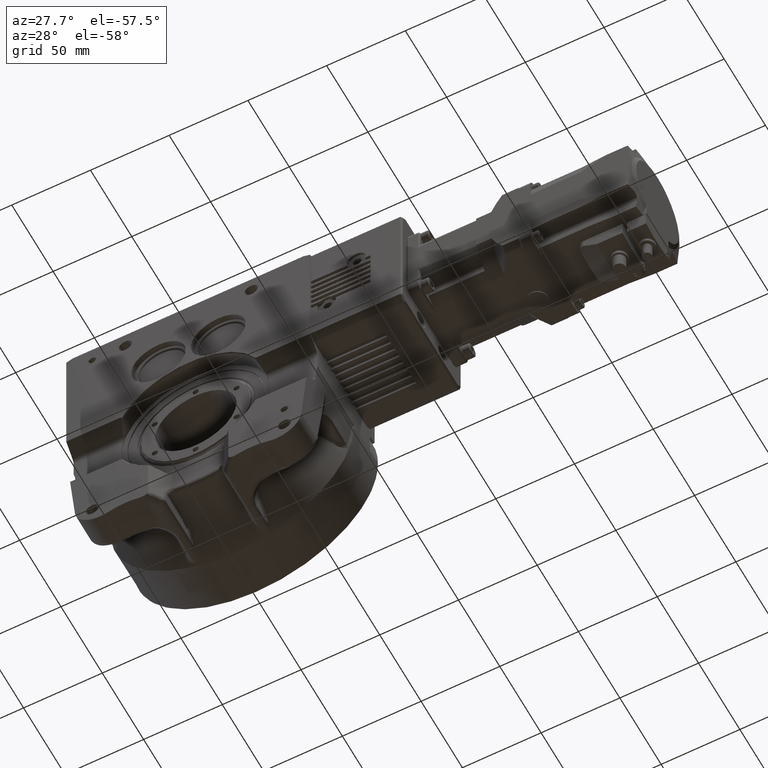
[diagram: clean part render]
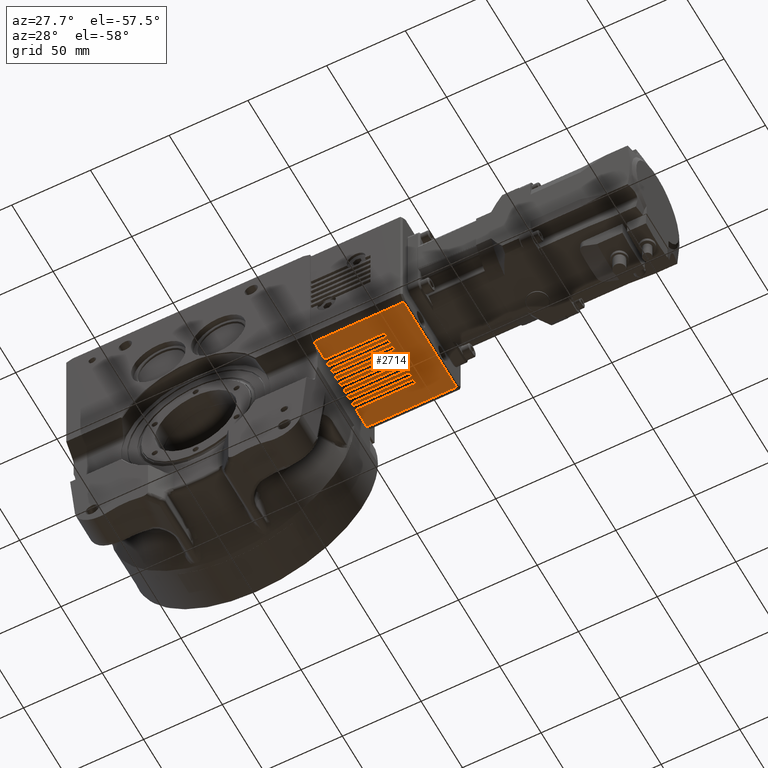
[diagram: same view with one face highlighted and labeled with its STEP entity id]
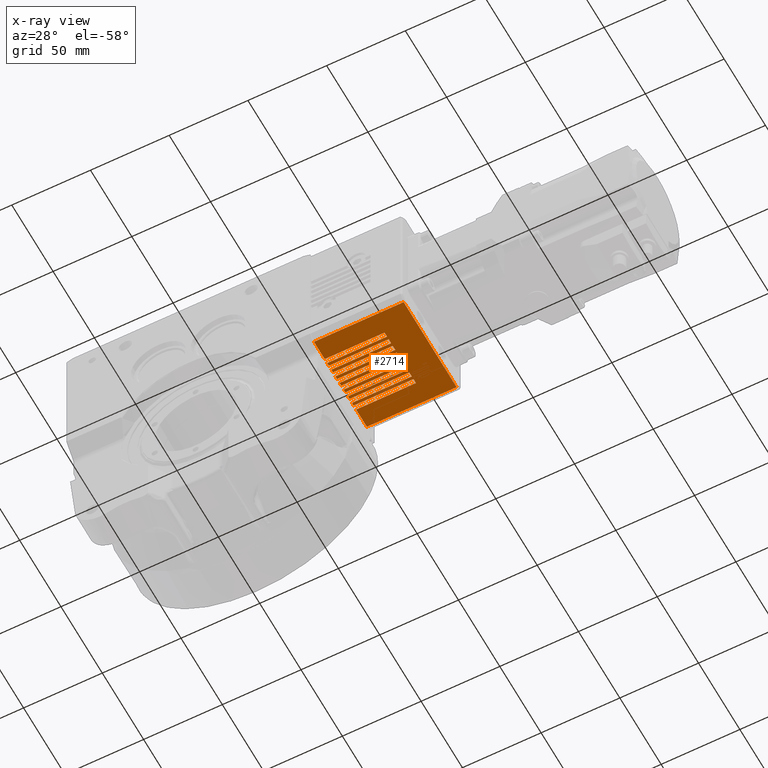
[diagram: x-ray of the same camera — body ghosted, the highlighted face saturated]
A machine part, auxiliary view. The second image highlights one B-rep face of the part: STEP entity #2714.
The next image is the same camera in x-ray: the body ghosted, the highlighted face saturated — about 0% of this face is hidden behind the body in this view.
In plain terms, the highlighted planar face has unit normal (0, 0, -1).
Its self-contained STEP definition (entity closure, byte-faithful):
#90 = DIRECTION ( 'NONE',  ( 1.000000000000000000, -2.782884840501479875E-17, 0.000000000000000000 ) ) ;
#307 = VERTEX_POINT ( 'NONE', #60801 ) ;
#331 = CARTESIAN_POINT ( 'NONE',  ( -1.001838542580531843E-15, -36.00000000000000000, -43.50000000000000000 ) ) ;
#1050 = VERTEX_POINT ( 'NONE', #28929 ) ;
#1334 = CARTESIAN_POINT ( 'NONE',  ( -154.2624153836570144, -1.000000000000000000, -43.50000000000000000 ) ) ;
#1397 = EDGE_CURVE ( 'NONE', #15927, #34918, #70241, .T. ) ;
#1958 = CARTESIAN_POINT ( 'NONE',  ( -1.001838542580531843E-15, -36.00000000000000000, -43.50000000000000000 ) ) ;
#2038 = VERTEX_POINT ( 'NONE', #23937 ) ;
#2714 = ADVANCED_FACE ( 'NONE', ( #62390 ), #37705, .T. ) ;
#3105 = DIRECTION ( 'NONE',  ( 0.000000000000000000, 1.000000000000000000, 0.000000000000000000 ) ) ;
#3333 = VERTEX_POINT ( 'NONE', #51579 ) ;
#3510 = VECTOR ( 'NONE', #64135, 1000.000000000000000 ) ;
#4363 = CARTESIAN_POINT ( 'NONE',  ( 38.00000000000000000, -4.000000000000000000, -43.50000000000000000 ) ) ;
#4749 = EDGE_CURVE ( 'NONE', #47466, #68506, #42339, .T. ) ;
#4782 = ORIENTED_EDGE ( 'NONE', *, *, #42998, .T. ) ;
#4945 = LINE ( 'NONE', #48483, #62873 ) ;
#5036 = VERTEX_POINT ( 'NONE', #52572 ) ;
#5043 = VERTEX_POINT ( 'NONE', #71863 ) ;
#5356 = ORIENTED_EDGE ( 'NONE', *, *, #72445, .T. ) ;
#5422 = VECTOR ( 'NONE', #30324, 1000.000000000000000 ) ;
#5534 = CARTESIAN_POINT ( 'NONE',  ( 38.00000000000000000, -9.000000000000000000, -43.50000000000000000 ) ) ;
#5771 = DIRECTION ( 'NONE',  ( -1.000000000000000000, 2.782884840501479875E-17, 0.000000000000000000 ) ) ;
#5887 = EDGE_CURVE ( 'NONE', #15698, #2038, #66327, .T. ) ;
#6012 = CARTESIAN_POINT ( 'NONE',  ( -2.782884840501480491E-17, -1.000000000000000000, -43.50000000000000000 ) ) ;
#6022 = LINE ( 'NONE', #56124, #55570 ) ;
#7044 = EDGE_CURVE ( 'NONE', #3333, #20768, #64631, .T. ) ;
#7217 = VERTEX_POINT ( 'NONE', #73208 ) ;
#7297 = VECTOR ( 'NONE', #28246, 1000.000000000000000 ) ;
#7767 = VECTOR ( 'NONE', #51444, 1000.000000000000000 ) ;
#7963 = EDGE_CURVE ( 'NONE', #37427, #64761, #77468, .T. ) ;
#8223 = CARTESIAN_POINT ( 'NONE',  ( -154.2624153836570144, 4.000000000000000000, -43.50000000000000000 ) ) ;
#8301 = DIRECTION ( 'NONE',  ( 1.000000000000000000, -2.782884840501479875E-17, 0.000000000000000000 ) ) ;
#8599 = ORIENTED_EDGE ( 'NONE', *, *, #75779, .T. ) ;
#9492 = CARTESIAN_POINT ( 'NONE',  ( -154.2624153836570144, -19.00000000000000000, -43.50000000000000000 ) ) ;
#9943 = LINE ( 'NONE', #34988, #26663 ) ;
#9998 = EDGE_CURVE ( 'NONE', #2038, #66585, #15232, .T. ) ;
#10114 = LINE ( 'NONE', #47929, #55194 ) ;
#10118 = ORIENTED_EDGE ( 'NONE', *, *, #44086, .T. ) ;
#11744 = VECTOR ( 'NONE', #38997, 1000.000000000000000 ) ;
#12012 = VECTOR ( 'NONE', #14257, 1000.000000000000000 ) ;
#12255 = CARTESIAN_POINT ( 'NONE',  ( -154.2624153836570144, -36.00000000000000000, -43.50000000000000000 ) ) ;
#12513 = CARTESIAN_POINT ( 'NONE',  ( 38.00000000000000000, 9.000000000000000000, -43.50000000000000000 ) ) ;
#12751 = CARTESIAN_POINT ( 'NONE',  ( -9.285310410370950507, 31.99609351155235260, -43.50000000000000000 ) ) ;
#12784 = LINE ( 'NONE', #63727, #32085 ) ;
#12840 = DIRECTION ( 'NONE',  ( -2.782884840501479875E-17, -1.000000000000000000, -6.162975822039160204E-33 ) ) ;
#13531 = VERTEX_POINT ( 'NONE', #63021 ) ;
#13828 = DIRECTION ( 'NONE',  ( -2.782884840501479875E-17, -1.000000000000000000, -6.162975822039160204E-33 ) ) ;
#14257 = DIRECTION ( 'NONE',  ( 0.000000000000000000, 1.000000000000000000, 0.000000000000000000 ) ) ;
#14667 = CARTESIAN_POINT ( 'NONE',  ( 3.061173324551629896E-16, 11.00000000000000000, -43.50000000000000000 ) ) ;
#14832 = LINE ( 'NONE', #9492, #17211 ) ;
#15232 = LINE ( 'NONE', #26338, #7767 ) ;
#15698 = VERTEX_POINT ( 'NONE', #47946 ) ;
#15927 = VERTEX_POINT ( 'NONE', #44590 ) ;
#16006 = EDGE_CURVE ( 'NONE', #307, #79423, #6022, .T. ) ;
#17211 = VECTOR ( 'NONE', #8301, 1000.000000000000000 ) ;
#17343 = VERTEX_POINT ( 'NONE', #5534 ) ;
#17423 = DIRECTION ( 'NONE',  ( -1.000000000000000000, 2.782884840501479875E-17, 0.000000000000000000 ) ) ;
#17756 = CARTESIAN_POINT ( 'NONE',  ( 38.00000000000000000, 32.00000000000000000, -43.50000000000000000 ) ) ;
#17981 = DIRECTION ( 'NONE',  ( -1.000000000000000000, 0.000000000000000000, -1.715085198752989854E-49 ) ) ;
#18574 = VERTEX_POINT ( 'NONE', #50707 ) ;
#18644 = VERTEX_POINT ( 'NONE', #36226 ) ;
#18710 = EDGE_CURVE ( 'NONE', #307, #63535, #43632, .T. ) ;
#20761 = LINE ( 'NONE', #56986, #66350 ) ;
#20768 = VERTEX_POINT ( 'NONE', #56010 ) ;
#20831 = EDGE_CURVE ( 'NONE', #42022, #25356, #80274, .T. ) ;
#20838 = ORIENTED_EDGE ( 'NONE', *, *, #42082, .T. ) ;
#20969 = ORIENTED_EDGE ( 'NONE', *, *, #9998, .T. ) ;
#21177 = DIRECTION ( 'NONE',  ( 1.000000000000000000, -2.782884840501479875E-17, 0.000000000000000000 ) ) ;
#21678 = EDGE_CURVE ( 'NONE', #28901, #57121, #58144, .T. ) ;
#22003 = EDGE_CURVE ( 'NONE', #17343, #7217, #55621, .T. ) ;
#22034 = CARTESIAN_POINT ( 'NONE',  ( 38.00000000000000000, 32.00000000000000000, -43.50000000000000000 ) ) ;
#22102 = DIRECTION ( 'NONE',  ( -1.000000000000000000, 2.782884840501479875E-17, 0.000000000000000000 ) ) ;
#22116 = VERTEX_POINT ( 'NONE', #56427 ) ;
#22311 = CARTESIAN_POINT ( 'NONE',  ( 2.782884840501480491E-17, 1.000000000000000000, -43.50000000000000000 ) ) ;
#22474 = LINE ( 'NONE', #41383, #7297 ) ;
#22481 = EDGE_CURVE ( 'NONE', #28901, #73191, #49365, .T. ) ;
#22883 = VECTOR ( 'NONE', #38708, 1000.000000000000000 ) ;
#23297 = CARTESIAN_POINT ( 'NONE',  ( 38.00000000000000000, -16.00000000000000000, -43.50000000000000000 ) ) ;
#23412 = CARTESIAN_POINT ( 'NONE',  ( -154.2624153836570144, -4.000000000000000000, -43.50000000000000000 ) ) ;
#23675 = VECTOR ( 'NONE', #30036, 1000.000000000000000 ) ;
#23893 = LINE ( 'NONE', #30054, #50604 ) ;
#23937 = CARTESIAN_POINT ( 'NONE',  ( 57.00000000000000000, -31.99609351155230286, -43.50000000000000000 ) ) ;
#24128 = DIRECTION ( 'NONE',  ( -2.782884840501479875E-17, -1.000000000000000000, -6.162975822039160204E-33 ) ) ;
#24350 = EDGE_CURVE ( 'NONE', #5043, #42437, #14832, .T. ) ;
#24985 = EDGE_LOOP ( 'NONE', ( #67729, #69359, #36705, #20838, #37859, #5356, #79271, #54900, #52061, #31234, #64230, #69128, #34188, #81023, #62717, #78273, #76099, #55452, #31611, #69835, #69209, #37966, #76469, #35671, #79900, #36961, #10118, #79089, #45515, #35992, #36875, #20969, #48266, #80532, #4782, #8599 ) ) ;
#24988 = CARTESIAN_POINT ( 'NONE',  ( 38.00000000000000000, 16.00000000000000000, -43.50000000000000000 ) ) ;
#25184 = CARTESIAN_POINT ( 'NONE',  ( 38.00000000000000000, 32.00000000000000000, -43.50000000000000000 ) ) ;
#25356 = VERTEX_POINT ( 'NONE', #73175 ) ;
#25619 = EDGE_CURVE ( 'NONE', #18574, #1050, #27071, .T. ) ;
#26338 = CARTESIAN_POINT ( 'NONE',  ( -9.285310410370950507, -31.99609351155235260, -43.50000000000000000 ) ) ;
#26663 = VECTOR ( 'NONE', #78987, 1000.000000000000000 ) ;
#27071 = LINE ( 'NONE', #8223, #71214 ) ;
#27284 = CARTESIAN_POINT ( 'NONE',  ( -154.2624153836570144, 1.000000000000000000, -43.50000000000000000 ) ) ;
#27285 = VERTEX_POINT ( 'NONE', #23297 ) ;
#27519 = DIRECTION ( 'NONE',  ( 0.000000000000000000, 1.000000000000000000, 0.000000000000000000 ) ) ;
#27952 = LINE ( 'NONE', #71534, #3510 ) ;
#28103 = CARTESIAN_POINT ( 'NONE',  ( -1.113153936200592197E-16, -4.000000000000000000, -43.50000000000000000 ) ) ;
#28218 = LINE ( 'NONE', #22034, #12012 ) ;
#28246 = DIRECTION ( 'NONE',  ( 0.000000000000000000, 1.000000000000000000, 0.000000000000000000 ) ) ;
#28357 = EDGE_CURVE ( 'NONE', #48240, #63518, #75894, .T. ) ;
#28901 = VERTEX_POINT ( 'NONE', #22311 ) ;
#28929 = CARTESIAN_POINT ( 'NONE',  ( 1.113153936200592197E-16, 4.000000000000000000, -43.50000000000000000 ) ) ;
#30036 = DIRECTION ( 'NONE',  ( -2.782884840501479875E-17, -1.000000000000000000, -6.162975822039160204E-33 ) ) ;
#30054 = CARTESIAN_POINT ( 'NONE',  ( -154.2624153836570144, -14.00000000000000000, -43.50000000000000000 ) ) ;
#30324 = DIRECTION ( 'NONE',  ( -2.782884840501479875E-17, -1.000000000000000000, -6.162975822039160204E-33 ) ) ;
#30423 = EDGE_CURVE ( 'NONE', #48240, #15927, #23893, .T. ) ;
#30519 = DIRECTION ( 'NONE',  ( 0.000000000000000000, 1.000000000000000000, 0.000000000000000000 ) ) ;
#31234 = ORIENTED_EDGE ( 'NONE', *, *, #4749, .T. ) ;
#31244 = EDGE_CURVE ( 'NONE', #64761, #79423, #79118, .T. ) ;
#31322 = CARTESIAN_POINT ( 'NONE',  ( -154.2624153836570144, -9.000000000000000000, -43.50000000000000000 ) ) ;
#31432 = DIRECTION ( 'NONE',  ( -2.782884840501479875E-17, -1.000000000000000000, -6.162975822039160204E-33 ) ) ;
#31611 = ORIENTED_EDGE ( 'NONE', *, *, #66519, .T. ) ;
#31822 = EDGE_CURVE ( 'NONE', #38197, #25356, #27952, .T. ) ;
#32085 = VECTOR ( 'NONE', #27519, 1000.000000000000000 ) ;
#32437 = LINE ( 'NONE', #12751, #36037 ) ;
#32929 = EDGE_CURVE ( 'NONE', #3333, #1050, #65784, .T. ) ;
#34118 = DIRECTION ( 'NONE',  ( -2.782884840501479875E-17, -1.000000000000000000, -6.162975822039160204E-33 ) ) ;
#34188 = ORIENTED_EDGE ( 'NONE', *, *, #22481, .F. ) ;
#34918 = VERTEX_POINT ( 'NONE', #66167 ) ;
#34988 = CARTESIAN_POINT ( 'NONE',  ( 38.00000000000000000, 32.00000000000000000, -43.50000000000000000 ) ) ;
#35180 = CARTESIAN_POINT ( 'NONE',  ( -3.896038776702074414E-16, -14.00000000000000000, -43.50000000000000000 ) ) ;
#35250 = CARTESIAN_POINT ( 'NONE',  ( 5.287481196952809852E-16, 19.00000000000000000, -43.50000000000000000 ) ) ;
#35671 = ORIENTED_EDGE ( 'NONE', *, *, #31244, .T. ) ;
#35673 = LINE ( 'NONE', #61549, #5422 ) ;
#35717 = VECTOR ( 'NONE', #41345, 1000.000000000000000 ) ;
#35992 = ORIENTED_EDGE ( 'NONE', *, *, #76174, .T. ) ;
#36037 = VECTOR ( 'NONE', #51367, 1000.000000000000000 ) ;
#36043 = VECTOR ( 'NONE', #45711, 1000.000000000000000 ) ;
#36226 = CARTESIAN_POINT ( 'NONE',  ( 38.00000000000000000, 19.00000000000000000, -43.50000000000000000 ) ) ;
#36518 = VERTEX_POINT ( 'NONE', #79225 ) ;
#36705 = ORIENTED_EDGE ( 'NONE', *, *, #1397, .T. ) ;
#36863 = EDGE_CURVE ( 'NONE', #42022, #37427, #20761, .T. ) ;
#36875 = ORIENTED_EDGE ( 'NONE', *, *, #5887, .T. ) ;
#36961 = ORIENTED_EDGE ( 'NONE', *, *, #18710, .T. ) ;
#37427 = VERTEX_POINT ( 'NONE', #38266 ) ;
#37705 = PLANE ( 'NONE',  #70628 ) ;
#37859 = ORIENTED_EDGE ( 'NONE', *, *, #62640, .F. ) ;
#37966 = ORIENTED_EDGE ( 'NONE', *, *, #36863, .T. ) ;
#38059 = VECTOR ( 'NONE', #80292, 1000.000000000000000 ) ;
#38197 = VERTEX_POINT ( 'NONE', #12513 ) ;
#38266 = CARTESIAN_POINT ( 'NONE',  ( 38.00000000000000000, 11.00000000000000000, -43.50000000000000000 ) ) ;
#38708 = DIRECTION ( 'NONE',  ( -1.000000000000000000, 2.782884840501479875E-17, 0.000000000000000000 ) ) ;
#38997 = DIRECTION ( 'NONE',  ( 0.000000000000000000, 1.000000000000000000, 0.000000000000000000 ) ) ;
#39440 = VECTOR ( 'NONE', #3105, 1000.000000000000000 ) ;
#39493 = CARTESIAN_POINT ( 'NONE',  ( -1.001838542580531843E-15, -36.00000000000000000, -43.50000000000000000 ) ) ;
#39948 = EDGE_CURVE ( 'NONE', #13531, #61303, #55398, .T. ) ;
#40525 = CARTESIAN_POINT ( 'NONE',  ( -154.2624153836570144, -6.000000000000000000, -43.50000000000000000 ) ) ;
#41345 = DIRECTION ( 'NONE',  ( -2.782884840501479875E-17, -1.000000000000000000, -6.162975822039160204E-33 ) ) ;
#41383 = CARTESIAN_POINT ( 'NONE',  ( 38.00000000000000000, 32.00000000000000000, -43.50000000000000000 ) ) ;
#42022 = VERTEX_POINT ( 'NONE', #14667 ) ;
#42082 = EDGE_CURVE ( 'NONE', #34918, #53480, #10114, .T. ) ;
#42151 = DIRECTION ( 'NONE',  ( -1.000000000000000000, 2.782884840501479875E-17, 0.000000000000000000 ) ) ;
#42264 = CARTESIAN_POINT ( 'NONE',  ( -1.001838542580531843E-15, -36.00000000000000000, -43.50000000000000000 ) ) ;
#42339 = LINE ( 'NONE', #23412, #47431 ) ;
#42437 = VERTEX_POINT ( 'NONE', #70059 ) ;
#42998 = EDGE_CURVE ( 'NONE', #42437, #27285, #28218, .T. ) ;
#43063 = LINE ( 'NONE', #42264, #55247 ) ;
#43438 = CARTESIAN_POINT ( 'NONE',  ( 38.00000000000000000, 14.00000000000000000, -43.50000000000000000 ) ) ;
#43632 = LINE ( 'NONE', #81042, #73043 ) ;
#44077 = DIRECTION ( 'NONE',  ( 1.000000000000000000, -2.782884840501479875E-17, 0.000000000000000000 ) ) ;
#44086 = EDGE_CURVE ( 'NONE', #63535, #18644, #9943, .T. ) ;
#44590 = CARTESIAN_POINT ( 'NONE',  ( 38.00000000000000000, -14.00000000000000000, -43.50000000000000000 ) ) ;
#45051 = EDGE_CURVE ( 'NONE', #57121, #18574, #12784, .T. ) ;
#45515 = ORIENTED_EDGE ( 'NONE', *, *, #39948, .F. ) ;
#45561 = EDGE_CURVE ( 'NONE', #68506, #22116, #22474, .T. ) ;
#45686 = CARTESIAN_POINT ( 'NONE',  ( -154.2624153836570144, -16.00000000000000000, -43.50000000000000000 ) ) ;
#45711 = DIRECTION ( 'NONE',  ( 1.000000000000000000, -2.782884840501479875E-17, 0.000000000000000000 ) ) ;
#46815 = CARTESIAN_POINT ( 'NONE',  ( -3.061173324551629896E-16, -11.00000000000000000, -43.50000000000000000 ) ) ;
#47431 = VECTOR ( 'NONE', #73172, 1000.000000000000000 ) ;
#47466 = VERTEX_POINT ( 'NONE', #28103 ) ;
#47929 = CARTESIAN_POINT ( 'NONE',  ( -154.2624153836570144, -11.00000000000000000, -43.50000000000000000 ) ) ;
#47946 = CARTESIAN_POINT ( 'NONE',  ( 57.00000000000000000, 31.99609351155230286, -43.50000000000000000 ) ) ;
#48114 = CARTESIAN_POINT ( 'NONE',  ( 3.896038776702074414E-16, 14.00000000000000000, -43.50000000000000000 ) ) ;
#48240 = VERTEX_POINT ( 'NONE', #35180 ) ;
#48266 = ORIENTED_EDGE ( 'NONE', *, *, #81113, .F. ) ;
#48483 = CARTESIAN_POINT ( 'NONE',  ( -154.2624153836570144, 19.00000000000000000, -43.50000000000000000 ) ) ;
#49365 = LINE ( 'NONE', #80197, #23675 ) ;
#49837 = CARTESIAN_POINT ( 'NONE',  ( -1.001838542580531843E-15, -36.00000000000000000, -43.50000000000000000 ) ) ;
#50604 = VECTOR ( 'NONE', #73646, 1000.000000000000000 ) ;
#50707 = CARTESIAN_POINT ( 'NONE',  ( 38.00000000000000000, 4.000000000000000000, -43.50000000000000000 ) ) ;
#51345 = CARTESIAN_POINT ( 'NONE',  ( 38.00000000000000000, 32.00000000000000000, -43.50000000000000000 ) ) ;
#51367 = DIRECTION ( 'NONE',  ( 1.000000000000000000, -2.782884840501479875E-17, 0.000000000000000000 ) ) ;
#51444 = DIRECTION ( 'NONE',  ( -1.000000000000000000, 2.782884840501479875E-17, 0.000000000000000000 ) ) ;
#51579 = CARTESIAN_POINT ( 'NONE',  ( 1.669730904300890021E-16, 6.000000000000000000, -43.50000000000000000 ) ) ;
#52061 = ORIENTED_EDGE ( 'NONE', *, *, #61217, .F. ) ;
#52434 = VECTOR ( 'NONE', #24128, 1000.000000000000000 ) ;
#52572 = CARTESIAN_POINT ( 'NONE',  ( -2.504596356451335031E-16, -9.000000000000000000, -43.50000000000000000 ) ) ;
#52710 = CARTESIAN_POINT ( 'NONE',  ( -154.2624153836570144, 6.000000000000000000, -43.50000000000000000 ) ) ;
#52907 = CARTESIAN_POINT ( 'NONE',  ( 38.00000000000000000, 1.000000000000000000, -43.50000000000000000 ) ) ;
#53480 = VERTEX_POINT ( 'NONE', #46815 ) ;
#54388 = CARTESIAN_POINT ( 'NONE',  ( -8.904144358856669545E-16, -31.99609351155230286, -43.50000000000000000 ) ) ;
#54900 = ORIENTED_EDGE ( 'NONE', *, *, #62539, .T. ) ;
#55194 = VECTOR ( 'NONE', #42151, 1000.000000000000000 ) ;
#55247 = VECTOR ( 'NONE', #68146, 1000.000000000000000 ) ;
#55398 = LINE ( 'NONE', #331, #52434 ) ;
#55427 = DIRECTION ( 'NONE',  ( 1.715085198752989854E-49, 6.162975822039160204E-33, -1.000000000000000000 ) ) ;
#55452 = ORIENTED_EDGE ( 'NONE', *, *, #7044, .T. ) ;
#55570 = VECTOR ( 'NONE', #31432, 1000.000000000000000 ) ;
#55621 = LINE ( 'NONE', #25184, #38059 ) ;
#55836 = CARTESIAN_POINT ( 'NONE',  ( -4.452615744802369772E-16, -16.00000000000000000, -43.50000000000000000 ) ) ;
#56010 = CARTESIAN_POINT ( 'NONE',  ( 38.00000000000000000, 6.000000000000000000, -43.50000000000000000 ) ) ;
#56124 = CARTESIAN_POINT ( 'NONE',  ( -1.001838542580531843E-15, -36.00000000000000000, -43.50000000000000000 ) ) ;
#56427 = CARTESIAN_POINT ( 'NONE',  ( 38.00000000000000000, -1.000000000000000000, -43.50000000000000000 ) ) ;
#56986 = CARTESIAN_POINT ( 'NONE',  ( -154.2624153836570144, 11.00000000000000000, -43.50000000000000000 ) ) ;
#57121 = VERTEX_POINT ( 'NONE', #52907 ) ;
#57209 = DIRECTION ( 'NONE',  ( -1.000000000000000000, 2.782884840501479875E-17, 0.000000000000000000 ) ) ;
#58030 = LINE ( 'NONE', #45686, #22883 ) ;
#58144 = LINE ( 'NONE', #27284, #60748 ) ;
#58821 = LINE ( 'NONE', #1334, #63125 ) ;
#60748 = VECTOR ( 'NONE', #77855, 1000.000000000000000 ) ;
#60801 = CARTESIAN_POINT ( 'NONE',  ( 4.452615744802369772E-16, 16.00000000000000000, -43.50000000000000000 ) ) ;
#61217 = EDGE_CURVE ( 'NONE', #47466, #36518, #35673, .T. ) ;
#61303 = VERTEX_POINT ( 'NONE', #35250 ) ;
#61418 = CARTESIAN_POINT ( 'NONE',  ( -154.2624153836570144, 14.00000000000000000, -43.50000000000000000 ) ) ;
#61549 = CARTESIAN_POINT ( 'NONE',  ( -1.001838542580531843E-15, -36.00000000000000000, -43.50000000000000000 ) ) ;
#62390 = FACE_OUTER_BOUND ( 'NONE', #24985, .T. ) ;
#62539 = EDGE_CURVE ( 'NONE', #7217, #36518, #64411, .T. ) ;
#62640 = EDGE_CURVE ( 'NONE', #5036, #53480, #68042, .T. ) ;
#62717 = ORIENTED_EDGE ( 'NONE', *, *, #45051, .T. ) ;
#62873 = VECTOR ( 'NONE', #5771, 1000.000000000000000 ) ;
#63021 = CARTESIAN_POINT ( 'NONE',  ( 8.904144358856669545E-16, 31.99609351155230286, -43.50000000000000000 ) ) ;
#63125 = VECTOR ( 'NONE', #57209, 1000.000000000000000 ) ;
#63518 = VERTEX_POINT ( 'NONE', #55836 ) ;
#63535 = VERTEX_POINT ( 'NONE', #24988 ) ;
#63727 = CARTESIAN_POINT ( 'NONE',  ( 38.00000000000000000, 32.00000000000000000, -43.50000000000000000 ) ) ;
#64135 = DIRECTION ( 'NONE',  ( -1.000000000000000000, 2.782884840501479875E-17, 0.000000000000000000 ) ) ;
#64230 = ORIENTED_EDGE ( 'NONE', *, *, #45561, .T. ) ;
#64411 = LINE ( 'NONE', #40525, #72506 ) ;
#64631 = LINE ( 'NONE', #52710, #36043 ) ;
#64761 = VERTEX_POINT ( 'NONE', #43438 ) ;
#65784 = LINE ( 'NONE', #39493, #71236 ) ;
#66167 = CARTESIAN_POINT ( 'NONE',  ( 38.00000000000000000, -11.00000000000000000, -43.50000000000000000 ) ) ;
#66327 = LINE ( 'NONE', #72070, #80016 ) ;
#66350 = VECTOR ( 'NONE', #21177, 1000.000000000000000 ) ;
#66519 = EDGE_CURVE ( 'NONE', #20768, #38197, #80264, .T. ) ;
#66585 = VERTEX_POINT ( 'NONE', #54388 ) ;
#67729 = ORIENTED_EDGE ( 'NONE', *, *, #28357, .F. ) ;
#67892 = EDGE_CURVE ( 'NONE', #18644, #61303, #4945, .T. ) ;
#68042 = LINE ( 'NONE', #72598, #35717 ) ;
#68146 = DIRECTION ( 'NONE',  ( -2.782884840501479875E-17, -1.000000000000000000, -6.162975822039160204E-33 ) ) ;
#68506 = VERTEX_POINT ( 'NONE', #4363 ) ;
#68633 = VECTOR ( 'NONE', #44077, 1000.000000000000000 ) ;
#69128 = ORIENTED_EDGE ( 'NONE', *, *, #69912, .T. ) ;
#69209 = ORIENTED_EDGE ( 'NONE', *, *, #20831, .F. ) ;
#69359 = ORIENTED_EDGE ( 'NONE', *, *, #30423, .T. ) ;
#69820 = VECTOR ( 'NONE', #12840, 1000.000000000000000 ) ;
#69835 = ORIENTED_EDGE ( 'NONE', *, *, #31822, .T. ) ;
#69912 = EDGE_CURVE ( 'NONE', #22116, #73191, #58821, .T. ) ;
#70059 = CARTESIAN_POINT ( 'NONE',  ( 38.00000000000000000, -19.00000000000000000, -43.50000000000000000 ) ) ;
#70241 = LINE ( 'NONE', #51345, #11744 ) ;
#70346 = VECTOR ( 'NONE', #17423, 1000.000000000000000 ) ;
#70628 = AXIS2_PLACEMENT_3D ( 'NONE', #12255, #55427, #17981 ) ;
#71214 = VECTOR ( 'NONE', #22102, 1000.000000000000000 ) ;
#71236 = VECTOR ( 'NONE', #34118, 1000.000000000000000 ) ;
#71534 = CARTESIAN_POINT ( 'NONE',  ( -154.2624153836570144, 9.000000000000000000, -43.50000000000000000 ) ) ;
#71863 = CARTESIAN_POINT ( 'NONE',  ( -5.287481196952809852E-16, -19.00000000000000000, -43.50000000000000000 ) ) ;
#72070 = CARTESIAN_POINT ( 'NONE',  ( 57.00000000000000000, -31.99609351155230286, -43.50000000000000000 ) ) ;
#72445 = EDGE_CURVE ( 'NONE', #5036, #17343, #75311, .T. ) ;
#72506 = VECTOR ( 'NONE', #77127, 1000.000000000000000 ) ;
#72598 = CARTESIAN_POINT ( 'NONE',  ( -1.001838542580531843E-15, -36.00000000000000000, -43.50000000000000000 ) ) ;
#73043 = VECTOR ( 'NONE', #90, 1000.000000000000000 ) ;
#73172 = DIRECTION ( 'NONE',  ( 1.000000000000000000, -2.782884840501479875E-17, 0.000000000000000000 ) ) ;
#73175 = CARTESIAN_POINT ( 'NONE',  ( 2.504596356451335031E-16, 9.000000000000000000, -43.50000000000000000 ) ) ;
#73191 = VERTEX_POINT ( 'NONE', #6012 ) ;
#73208 = CARTESIAN_POINT ( 'NONE',  ( 38.00000000000000000, -6.000000000000000000, -43.50000000000000000 ) ) ;
#73287 = DIRECTION ( 'NONE',  ( 0.000000000000000000, -1.000000000000000000, 0.000000000000000000 ) ) ;
#73646 = DIRECTION ( 'NONE',  ( 1.000000000000000000, -2.782884840501479875E-17, 0.000000000000000000 ) ) ;
#75311 = LINE ( 'NONE', #31322, #68633 ) ;
#75779 = EDGE_CURVE ( 'NONE', #27285, #63518, #58030, .T. ) ;
#75894 = LINE ( 'NONE', #1958, #78063 ) ;
#76099 = ORIENTED_EDGE ( 'NONE', *, *, #32929, .F. ) ;
#76174 = EDGE_CURVE ( 'NONE', #13531, #15698, #32437, .T. ) ;
#76469 = ORIENTED_EDGE ( 'NONE', *, *, #7963, .T. ) ;
#76660 = CARTESIAN_POINT ( 'NONE',  ( 38.00000000000000000, 32.00000000000000000, -43.50000000000000000 ) ) ;
#77127 = DIRECTION ( 'NONE',  ( -1.000000000000000000, 2.782884840501479875E-17, 0.000000000000000000 ) ) ;
#77130 = VECTOR ( 'NONE', #30519, 1000.000000000000000 ) ;
#77468 = LINE ( 'NONE', #76660, #39440 ) ;
#77855 = DIRECTION ( 'NONE',  ( 1.000000000000000000, -2.782884840501479875E-17, 0.000000000000000000 ) ) ;
#78063 = VECTOR ( 'NONE', #13828, 1000.000000000000000 ) ;
#78273 = ORIENTED_EDGE ( 'NONE', *, *, #25619, .T. ) ;
#78987 = DIRECTION ( 'NONE',  ( 0.000000000000000000, 1.000000000000000000, 0.000000000000000000 ) ) ;
#79089 = ORIENTED_EDGE ( 'NONE', *, *, #67892, .T. ) ;
#79118 = LINE ( 'NONE', #61418, #70346 ) ;
#79225 = CARTESIAN_POINT ( 'NONE',  ( -1.669730904300890021E-16, -6.000000000000000000, -43.50000000000000000 ) ) ;
#79271 = ORIENTED_EDGE ( 'NONE', *, *, #22003, .T. ) ;
#79423 = VERTEX_POINT ( 'NONE', #48114 ) ;
#79900 = ORIENTED_EDGE ( 'NONE', *, *, #16006, .F. ) ;
#80016 = VECTOR ( 'NONE', #73287, 1000.000000000000000 ) ;
#80197 = CARTESIAN_POINT ( 'NONE',  ( -1.001838542580531843E-15, -36.00000000000000000, -43.50000000000000000 ) ) ;
#80264 = LINE ( 'NONE', #17756, #77130 ) ;
#80274 = LINE ( 'NONE', #49837, #69820 ) ;
#80292 = DIRECTION ( 'NONE',  ( 0.000000000000000000, 1.000000000000000000, 0.000000000000000000 ) ) ;
#80532 = ORIENTED_EDGE ( 'NONE', *, *, #24350, .T. ) ;
#81023 = ORIENTED_EDGE ( 'NONE', *, *, #21678, .T. ) ;
#81042 = CARTESIAN_POINT ( 'NONE',  ( -154.2624153836570144, 16.00000000000000000, -43.50000000000000000 ) ) ;
#81113 = EDGE_CURVE ( 'NONE', #5043, #66585, #43063, .T. ) ;